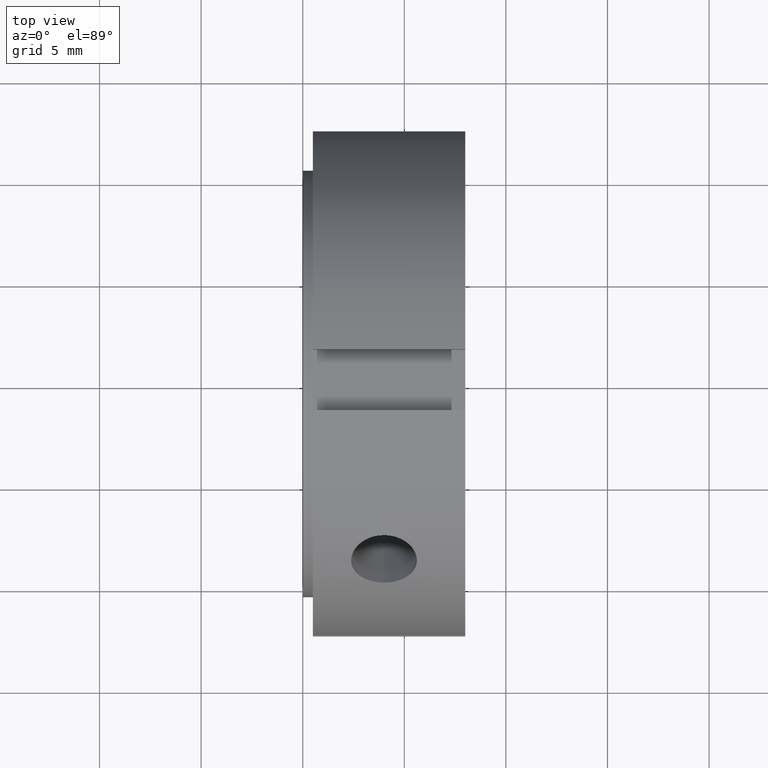
[diagram: clean part render]
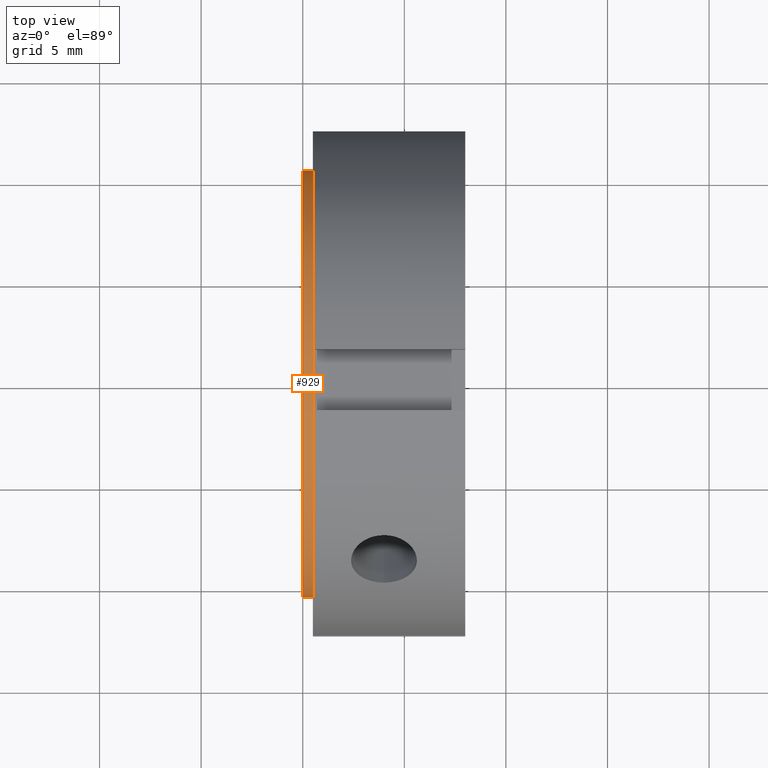
[diagram: same view with one face highlighted and labeled with its STEP entity id]
A machine part, top view. The second image highlights one B-rep face of the part: STEP entity #929.
In plain terms, the highlighted cylindrical surface (bore or boss wall) has radius 10.5 mm, axis along (1, 0, 0).
Its self-contained STEP definition (entity closure, byte-faithful):
#329=CARTESIAN_POINT('',(0.499999999999998,-1.942890E-015,-10.499999999999996));
#330=VERTEX_POINT('',#329);
#439=CARTESIAN_POINT('',(0.499999999999998,-10.499999999999996,1.318390E-015));
#440=VERTEX_POINT('',#439);
#549=CARTESIAN_POINT('',(0.499999999999998,6.245005E-016,10.499999999999996));
#550=VERTEX_POINT('',#549);
#598=CARTESIAN_POINT('',(0.499999999999998,10.499999999999998,0.0));
#599=VERTEX_POINT('',#598);
#606=CARTESIAN_POINT('',(0.499999999999998,0.0,0.0));
#607=DIRECTION('',(1.0,0.0,0.0));
#608=DIRECTION('',(0.0,1.0,0.0));
#609=AXIS2_PLACEMENT_3D('',#606,#607,#608);
#610=CIRCLE('',#609,10.499999999999998);
#611=EDGE_CURVE('',#599,#550,#610,.T.);
#632=CARTESIAN_POINT('',(0.499999999999998,0.0,0.0));
#633=DIRECTION('',(1.0,0.0,0.0));
#634=DIRECTION('',(0.0,1.0,0.0));
#635=AXIS2_PLACEMENT_3D('',#632,#633,#634);
#636=CIRCLE('',#635,10.499999999999998);
#637=EDGE_CURVE('',#550,#440,#636,.T.);
#658=CARTESIAN_POINT('',(0.499999999999998,0.0,0.0));
#659=DIRECTION('',(1.0,0.0,0.0));
#660=DIRECTION('',(0.0,1.0,0.0));
#661=AXIS2_PLACEMENT_3D('',#658,#659,#660);
#662=CIRCLE('',#661,10.499999999999998);
#663=EDGE_CURVE('',#440,#330,#662,.T.);
#886=CARTESIAN_POINT('',(-4.440892E-015,10.499999999999998,0.0));
#887=VERTEX_POINT('',#886);
#888=CARTESIAN_POINT('',(-4.440892E-015,0.0,0.0));
#889=DIRECTION('',(1.0,0.0,0.0));
#890=DIRECTION('',(0.0,1.0,0.0));
#891=AXIS2_PLACEMENT_3D('',#888,#889,#890);
#892=CIRCLE('',#891,10.499999999999998);
#893=EDGE_CURVE('',#887,#887,#892,.T.);
#909=CARTESIAN_POINT('',(0.249999999999997,0.0,0.0));
#910=DIRECTION('',(1.0,0.0,0.0));
#911=DIRECTION('',(0.0,1.0,0.0));
#912=AXIS2_PLACEMENT_3D('',#909,#910,#911);
#913=CYLINDRICAL_SURFACE('',#912,10.499999999999998);
#914=ORIENTED_EDGE('',*,*,#611,.F.);
#915=CARTESIAN_POINT('',(0.499999999999998,0.0,0.0));
#916=DIRECTION('',(1.0,0.0,0.0));
#917=DIRECTION('',(0.0,1.0,0.0));
#918=AXIS2_PLACEMENT_3D('',#915,#916,#917);
#919=CIRCLE('',#918,10.499999999999998);
#920=EDGE_CURVE('',#330,#599,#919,.T.);
#921=ORIENTED_EDGE('',*,*,#920,.F.);
#922=ORIENTED_EDGE('',*,*,#663,.F.);
#923=ORIENTED_EDGE('',*,*,#637,.F.);
#924=EDGE_LOOP('',(#914,#921,#922,#923));
#925=FACE_OUTER_BOUND('',#924,.T.);
#926=ORIENTED_EDGE('',*,*,#893,.T.);
#927=EDGE_LOOP('',(#926));
#928=FACE_BOUND('',#927,.T.);
#929=ADVANCED_FACE('',(#925,#928),#913,.T.);